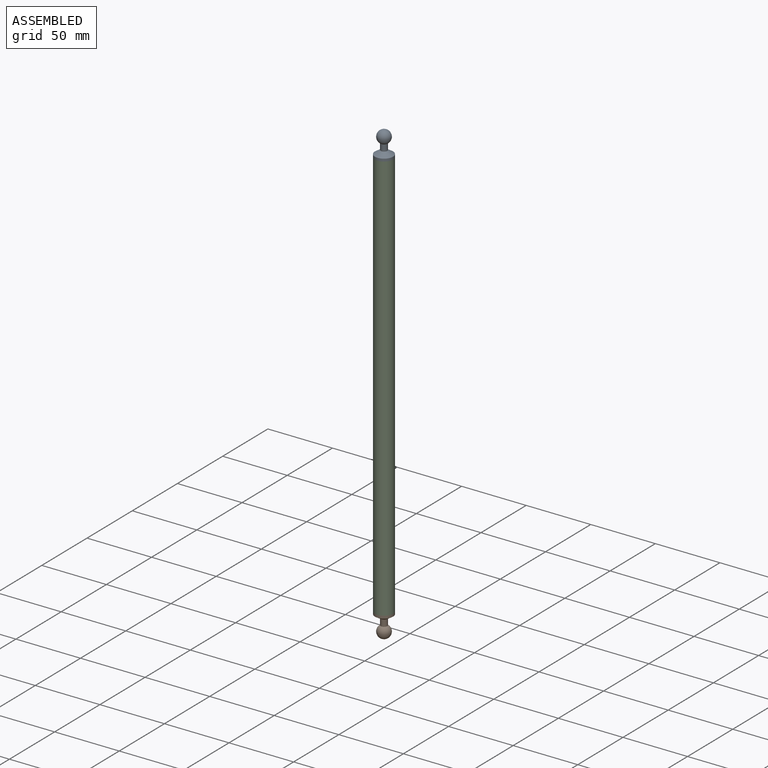
[diagram: assembled view]
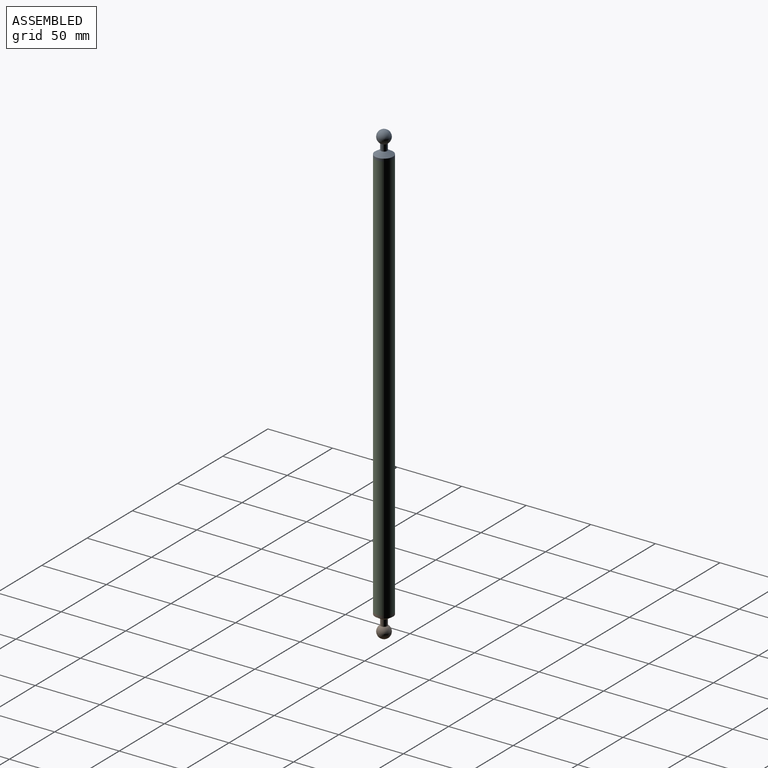
[diagram: assembled view, second angle]
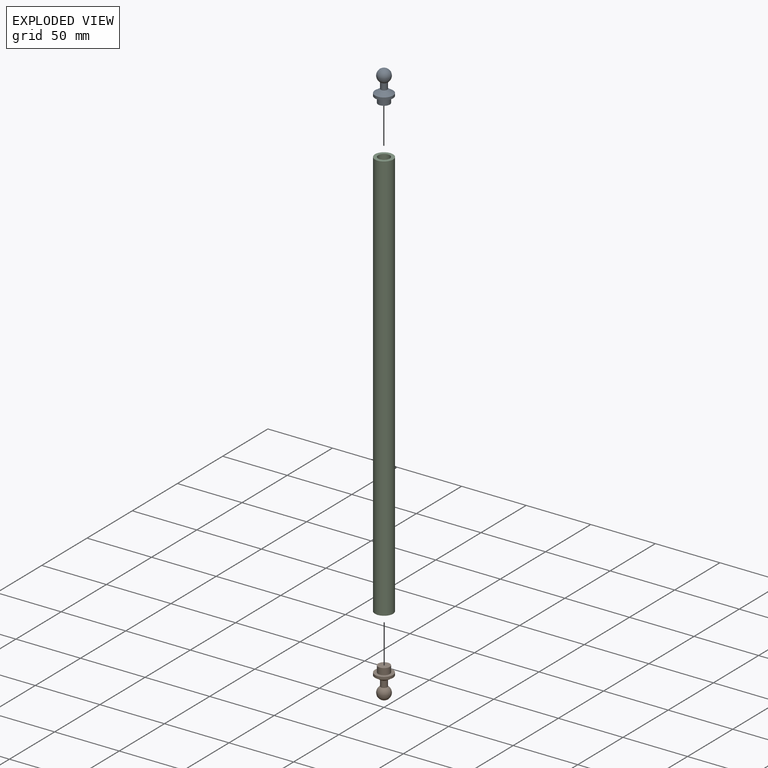
[diagram: exploded view]
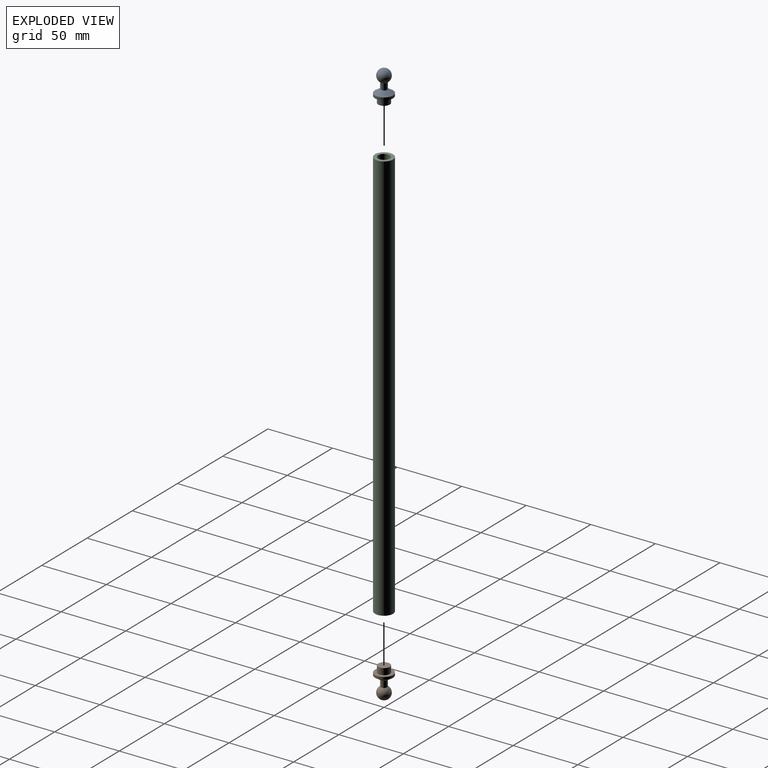
[diagram: exploded view, second angle]
ASSEMBLY  parts=3 mates=2
PART A: 7 faces, bbox 14x14x24.2 mm
  f0: cylinder r=7mm len=14mm, axis (0,0,1), area 88mm2, adj f1,f6
  f1: cone r=7mm half-angle=57.8deg, axis (0,0,1), area 158.6mm2, adj f0,f2
  f2: cylinder r=2.5mm len=5mm, axis (0,0,1), area 78.5mm2, adj f1,f3
  f3: sphere r=5mm, area 293.1mm2, adj f2
  f4: plane 9x9mm, normal (0,0,1), area 63.6mm2, adj f5
  f5: cylinder r=4.5mm len=9mm, axis (0,0,1), area 141.4mm2, adj f4,f6
  f6: plane 14x14mm, normal (0,0,1), area 90.3mm2, adj f0,f5
PART B: same geometry as A
PART C: 4 faces, bbox 14x14x317.9 mm
  f0: cylinder r=4.5mm len=317.9mm, axis (0,0,-1), area 8988.5mm2, adj f2,f3
  f1: cylinder r=7mm len=317.9mm, axis (0,0,-1), area 13982.1mm2, adj f2,f3
  f2: plane 14x14mm, normal (0,0,1), area 90.3mm2, adj f0,f1
  f3: plane 14x14mm, normal (0,0,-1), area 90.3mm2, adj f0,f1
PLACE A rot(axis=(0,1,0),180deg) t=(0,0,163.78)mm
PLACE B t=(0,0,-163.78)mm
PLACE C at identity
MATE fastened B.f0 <-> C.f1  axis (0,0,1) through (0,0,-158.95)mm
MATE fastened A.f0 <-> C.f1  axis (0,0,-1) through (0,0,158.95)mm
